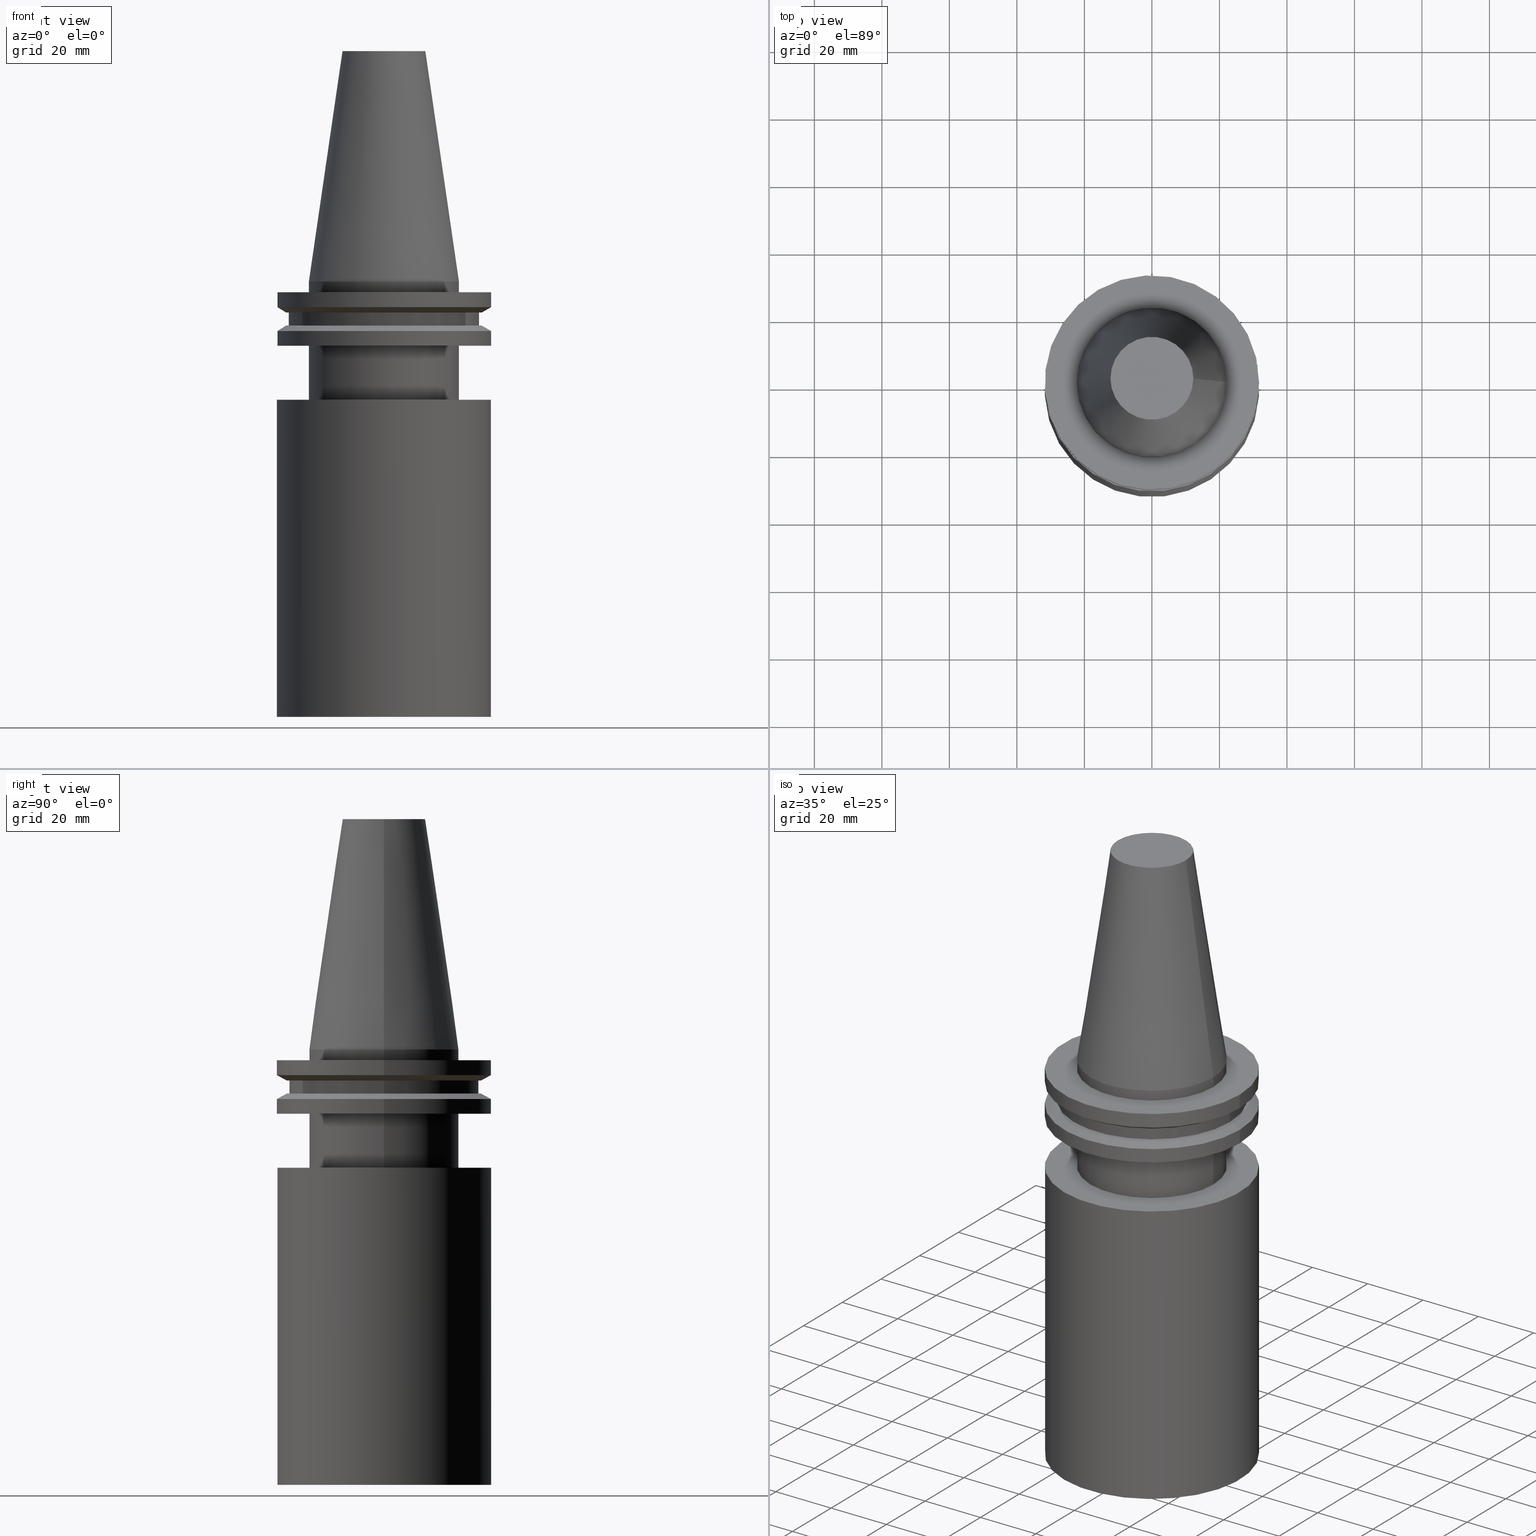
[diagram: canonical four-view strip — front | top / right | iso, engineering-drawing reading convention]
A machine part, canonical four-view strip (front | top / right | iso — engineering-drawing reading convention). The complete STEP part file that produces these views, byte-faithful:
ISO-10303-21;
HEADER;
FILE_DESCRIPTION (( 'STEP AP203' ),
    '1' );
FILE_NAME ('11.368.464.stp',
    '2022-03-09T15:14:03',
    ( '' ),
    ( '' ),
    'SwSTEP 2.0',
    'SolidWorks 2021',
    '' );
FILE_SCHEMA (( 'CONFIG_CONTROL_DESIGN' ));
ENDSEC;

DATA;
#1 = EDGE_CURVE ( 'NONE', #144, #144, #96, .T. ) ;
#2 = EDGE_LOOP ( 'NONE', ( #128 ) ) ;
#3 = LOCAL_TIME ( 9, 14, 3.000000000000000000, #391 ) ;
#4 = CC_DESIGN_DATE_AND_TIME_ASSIGNMENT ( #150, #395, ( #170 ) ) ;
#5 = CARTESIAN_POINT ( 'NONE',  ( 28.17999999999999972, 0.000000000000000000, -13.05499999999999794 ) ) ;
#6 = CYLINDRICAL_SURFACE ( 'NONE', #271, 22.22500000000000142 ) ;
#7 = ORIENTED_EDGE ( 'NONE', *, *, #334, .F. ) ;
#8 = FACE_BOUND ( 'NONE', #277, .T. ) ;
#9 = AXIS2_PLACEMENT_3D ( 'NONE', #383, #196, #69 ) ;
#10 = FACE_OUTER_BOUND ( 'NONE', #111, .T. ) ;
#11 = ORIENTED_EDGE ( 'NONE', *, *, #52, .T. ) ;
#12 = EDGE_LOOP ( 'NONE', ( #122 ) ) ;
#13 = EDGE_LOOP ( 'NONE', ( #120 ) ) ;
#14 = ADVANCED_FACE ( 'NONE', ( #198, #161 ), #224, .F. ) ;
#15 = FACE_BOUND ( 'NONE', #159, .T. ) ;
#16 = CARTESIAN_POINT ( 'NONE',  ( 0.000000000000000000, 0.000000000000000000, 68.25000000000000000 ) ) ;
#17 = CALENDAR_DATE ( 2022, 9, 3 ) ;
#18 = FACE_BOUND ( 'NONE', #251, .T. ) ;
#19 = CIRCLE ( 'NONE', #312, 22.22499999999999787 ) ;
#20 = EDGE_LOOP ( 'NONE', ( #24 ) ) ;
#21 = DATE_AND_TIME ( #205, #392 ) ;
#22 = CARTESIAN_POINT ( 'NONE',  ( 22.22500000000000142, 0.000000000000000000, 0.000000000000000000 ) ) ;
#23 = APPROVAL_ROLE ( '' ) ;
#24 = ORIENTED_EDGE ( 'NONE', *, *, #146, .F. ) ;
#25 = FACE_OUTER_BOUND ( 'NONE', #70, .T. ) ;
#26 = AXIS2_PLACEMENT_3D ( 'NONE', #272, #333, #28 ) ;
#27 = EDGE_CURVE ( 'NONE', #46, #46, #388, .T. ) ;
#28 = DIRECTION ( 'NONE',  ( 1.000000000000000000, 0.000000000000000000, 0.000000000000000000 ) ) ;
#29 = EDGE_LOOP ( 'NONE', ( #347 ) ) ;
#30 = COORDINATED_UNIVERSAL_TIME_OFFSET ( 6, 0, .BEHIND. ) ;
#31 = DIRECTION ( 'NONE',  ( 1.000000000000000000, 0.000000000000000000, 0.000000000000000000 ) ) ;
#32 = CYLINDRICAL_SURFACE ( 'NONE', #209, 31.75000000000000000 ) ;
#33 = CIRCLE ( 'NONE', #238, 28.17999999999999972 ) ;
#34 = DIRECTION ( 'NONE',  ( -1.000000000000000000, 0.000000000000000000, -0.000000000000000000 ) ) ;
#35 = DIRECTION ( 'NONE',  ( -0.000000000000000000, -0.000000000000000000, 1.000000000000000000 ) ) ;
#36 = AXIS2_PLACEMENT_3D ( 'NONE', #256, #346, #348 ) ;
#37 = DIRECTION ( 'NONE',  ( -0.000000000000000000, -0.000000000000000000, 1.000000000000000000 ) ) ;
#38 = DIRECTION ( 'NONE',  ( 0.000000000000000000, 0.000000000000000000, -1.000000000000000000 ) ) ;
#39 = EDGE_CURVE ( 'NONE', #147, #147, #365, .T. ) ;
#40 = CYLINDRICAL_SURFACE ( 'NONE', #218, 28.17999999999999972 ) ;
#41 = APPROVAL_PERSON_ORGANIZATION ( #173, #252, #23 ) ;
#42 = CLOSED_SHELL ( 'NONE', ( #94, #199, #98, #167, #307, #109, #370, #77, #288, #309, #248, #14, #274, #382, #349, #103 ) ) ;
#43 = APPROVAL_STATUS ( 'not_yet_approved' ) ;
#44 = DIRECTION ( 'NONE',  ( -0.000000000000000000, 7.821054598067183607E-17, -1.000000000000000000 ) ) ;
#45 = VERTEX_POINT ( 'NONE', #267 ) ;
#46 = VERTEX_POINT ( 'NONE', #22 ) ;
#47 = MECHANICAL_CONTEXT ( 'NONE', #371, 'mechanical' ) ;
#48 = FACE_OUTER_BOUND ( 'NONE', #143, .T. ) ;
#49 = CARTESIAN_POINT ( 'NONE',  ( 22.22500000000000142, 0.000000000000000000, -19.04999999999999716 ) ) ;
#50 = APPLICATION_CONTEXT ( 'configuration controlled 3d designs of mechanical parts and assemblies' ) ;
#51 = COORDINATED_UNIVERSAL_TIME_OFFSET ( 6, 0, .BEHIND. ) ;
#52 = EDGE_CURVE ( 'NONE', #368, #368, #268, .T. ) ;
#53 = ORIENTED_EDGE ( 'NONE', *, *, #154, .T. ) ;
#54 = CIRCLE ( 'NONE', #61, 31.75000000000000000 ) ;
#55 = AXIS2_PLACEMENT_3D ( 'NONE', #133, #163, #322 ) ;
#56 = FACE_OUTER_BOUND ( 'NONE', #174, .T. ) ;
#57 = VERTEX_POINT ( 'NONE', #182 ) ;
#58 = ORIENTED_EDGE ( 'NONE', *, *, #327, .T. ) ;
#59 = DIRECTION ( 'NONE',  ( -0.000000000000000000, -0.000000000000000000, 1.000000000000000000 ) ) ;
#60 = AXIS2_PLACEMENT_3D ( 'NONE', #297, #294, #80 ) ;
#61 = AXIS2_PLACEMENT_3D ( 'NONE', #306, #216, #119 ) ;
#62 = FACE_OUTER_BOUND ( 'NONE', #172, .T. ) ;
#63 = DIRECTION ( 'NONE',  ( 1.000000000000000000, 0.000000000000000000, 0.000000000000000000 ) ) ;
#64 = CARTESIAN_POINT ( 'NONE',  ( 0.000000000000000000, 0.000000000000000000, 68.25000000000000000 ) ) ;
#65 = DIRECTION ( 'NONE',  ( 0.000000000000000000, 1.000000000000000000, 0.000000000000000000 ) ) ;
#66 = PRODUCT_RELATED_PRODUCT_CATEGORY ( 'detail', '', ( #258 ) ) ;
#67 = FACE_OUTER_BOUND ( 'NONE', #378, .T. ) ;
#68 = EDGE_CURVE ( 'NONE', #91, #91, #393, .T. ) ;
#69 = DIRECTION ( 'NONE',  ( 1.000000000000000000, 0.000000000000000000, 0.000000000000000000 ) ) ;
#70 = EDGE_LOOP ( 'NONE', ( #11 ) ) ;
#71 = ORIENTED_EDGE ( 'NONE', *, *, #177, .T. ) ;
#72 = CIRCLE ( 'NONE', #60, 31.75000000000000000 ) ;
#73 = AXIS2_PLACEMENT_3D ( 'NONE', #376, #202, #319 ) ;
#74 = PRODUCT_DEFINITION_SHAPE ( 'NONE', 'NONE',  #170 ) ;
#75 = CARTESIAN_POINT ( 'NONE',  ( 0.000000000000000000, 0.000000000000000000, -35.04999999999999716 ) ) ;
#76 = APPROVAL_DATE_TIME ( #21, #208 ) ;
#77 = ADVANCED_FACE ( 'NONE', ( #318, #222 ), #40, .T. ) ;
#78 = CARTESIAN_POINT ( 'NONE',  ( 0.000000000000000000, 9.710562085369218008E-32, -35.04999999999999716 ) ) ;
#79 = APPLICATION_PROTOCOL_DEFINITION ( 'international standard', 'config_control_design', 1994, #371 ) ;
#80 = DIRECTION ( 'NONE',  ( 1.000000000000000000, 0.000000000000000000, 0.000000000000000000 ) ) ;
#81 = LOCAL_TIME ( 9, 14, 3.000000000000000000, #169 ) ;
#82 = APPROVAL_DATE_TIME ( #357, #252 ) ;
#83 = APPROVAL ( #43, 'UNSPECIFIED' ) ;
#84 = ORIENTED_EDGE ( 'NONE', *, *, #240, .T. ) ;
#85 = PERSON_AND_ORGANIZATION_ROLE ( 'design_supplier' ) ;
#86 = CARTESIAN_POINT ( 'NONE',  ( 31.75000000000000000, 0.000000000000000000, -14.65472339340266572 ) ) ;
#87 = DIRECTION ( 'NONE',  ( 0.000000000000000000, -0.000000000000000000, 1.000000000000000000 ) ) ;
#88 = AXIS2_PLACEMENT_3D ( 'NONE', #129, #38, #344 ) ;
#89 = EDGE_LOOP ( 'NONE', ( #269 ) ) ;
#90 = DIRECTION ( 'NONE',  ( 1.000000000000000000, 0.000000000000000000, 0.000000000000000000 ) ) ;
#91 = VERTEX_POINT ( 'NONE', #86 ) ;
#92 = EDGE_LOOP ( 'NONE', ( #360 ) ) ;
#93 = VERTEX_POINT ( 'NONE', #214 ) ;
#94 = ADVANCED_FACE ( 'NONE', ( #8, #102 ), #283, .T. ) ;
#95 = FACE_OUTER_BOUND ( 'NONE', #254, .T. ) ;
#96 = CIRCLE ( 'NONE', #55, 31.74999999999999289 ) ;
#97 = CARTESIAN_POINT ( 'NONE',  ( 0.000000000000000000, 0.000000000000000000, 68.25000000000000000 ) ) ;
#98 = ADVANCED_FACE ( 'NONE', ( #67, #375 ), #220, .T. ) ;
#99 = PLANE ( 'NONE',  #292 ) ;
#100 = CARTESIAN_POINT ( 'NONE',  ( 0.000000000000000000, 0.000000000000000000, -19.04999999999999716 ) ) ;
#101 = DATE_AND_TIME ( #200, #104 ) ;
#102 = FACE_OUTER_BOUND ( 'NONE', #136, .T. ) ;
#103 = ADVANCED_FACE ( 'NONE', ( #278 ), #131, .T. ) ;
#104 = LOCAL_TIME ( 9, 14, 3.000000000000000000, #30 ) ;
#105 = FACE_OUTER_BOUND ( 'NONE', #113, .T. ) ;
#106 = DIRECTION ( 'NONE',  ( 1.000000000000000000, 0.000000000000000000, 0.000000000000000000 ) ) ;
#107 = DIRECTION ( 'NONE',  ( -0.000000000000000000, -0.000000000000000000, 1.000000000000000000 ) ) ;
#108 = CARTESIAN_POINT ( 'NONE',  ( 0.000000000000000000, 0.000000000000000000, -14.65472339340266572 ) ) ;
#109 = ADVANCED_FACE ( 'NONE', ( #18, #168 ), #229, .T. ) ;
#110 = FACE_BOUND ( 'NONE', #20, .T. ) ;
#111 = EDGE_LOOP ( 'NONE', ( #366 ) ) ;
#112 = APPLICATION_PROTOCOL_DEFINITION ( 'international standard', 'config_control_design', 1994, #50 ) ;
#113 = EDGE_LOOP ( 'NONE', ( #262 ) ) ;
#114 = CC_DESIGN_PERSON_AND_ORGANIZATION_ASSIGNMENT ( #359, #85, ( #171 ) ) ;
#115 = CALENDAR_DATE ( 2022, 9, 3 ) ;
#116 = CARTESIAN_POINT ( 'NONE',  ( 12.27178102086201150, 0.000000000000000000, 68.25000000000000000 ) ) ;
#117 = PERSON_AND_ORGANIZATION ( #273, #324 ) ;
#118 = ORIENTED_EDGE ( 'NONE', *, *, #1, .T. ) ;
#119 = DIRECTION ( 'NONE',  ( 1.000000000000000000, 0.000000000000000000, 0.000000000000000000 ) ) ;
#120 = ORIENTED_EDGE ( 'NONE', *, *, #68, .T. ) ;
#121 = AXIS2_PLACEMENT_3D ( 'NONE', #153, #87, #210 ) ;
#122 = ORIENTED_EDGE ( 'NONE', *, *, #27, .F. ) ;
#123 = CARTESIAN_POINT ( 'NONE',  ( 0.000000000000000000, 0.000000000000000000, 68.25000000000000000 ) ) ;
#124 = EDGE_CURVE ( 'NONE', #331, #331, #192, .T. ) ;
#125 = CARTESIAN_POINT ( 'NONE',  ( 0.000000000000000000, 0.000000000000000000, -35.04999999999999716 ) ) ;
#126 = CIRCLE ( 'NONE', #379, 22.22500000000000142 ) ;
#127 = AXIS2_PLACEMENT_3D ( 'NONE', #75, #44, #140 ) ;
#128 = ORIENTED_EDGE ( 'NONE', *, *, #362, .T. ) ;
#129 = CARTESIAN_POINT ( 'NONE',  ( 0.000000000000000000, 0.000000000000000000, 0.000000000000000000 ) ) ;
#130 = CYLINDRICAL_SURFACE ( 'NONE', #185, 31.75000000000000000 ) ;
#131 = PLANE ( 'NONE',  #332 ) ;
#132 = ORIENTED_EDGE ( 'NONE', *, *, #52, .F. ) ;
#133 = CARTESIAN_POINT ( 'NONE',  ( 0.000000000000000000, 7.347880794884119933E-15, -129.0000000000000000 ) ) ;
#134 = SHAPE_DEFINITION_REPRESENTATION ( #74, #298 ) ;
#135 = EDGE_LOOP ( 'NONE', ( #84 ) ) ;
#136 = EDGE_LOOP ( 'NONE', ( #369 ) ) ;
#137 = DIRECTION ( 'NONE',  ( -0.000000000000000000, -0.000000000000000000, 1.000000000000000000 ) ) ;
#138 = ORIENTED_EDGE ( 'NONE', *, *, #177, .F. ) ;
#139 = APPROVAL_DATE_TIME ( #166, #83 ) ;
#140 = DIRECTION ( 'NONE',  ( 0.000000000000000000, 1.000000000000000000, 0.000000000000000000 ) ) ;
#141 = AXIS2_PLACEMENT_3D ( 'NONE', #233, #354, #175 ) ;
#142 = EDGE_CURVE ( 'NONE', #57, #57, #301, .T. ) ;
#143 = EDGE_LOOP ( 'NONE', ( #244 ) ) ;
#144 = VERTEX_POINT ( 'NONE', #351 ) ;
#145 = PERSON_AND_ORGANIZATION ( #273, #324 ) ;
#146 = EDGE_CURVE ( 'NONE', #305, #305, #217, .T. ) ;
#147 = VERTEX_POINT ( 'NONE', #361 ) ;
#148 = VERTEX_POINT ( 'NONE', #49 ) ;
#149 = VERTEX_POINT ( 'NONE', #266 ) ;
#150 = DATE_AND_TIME ( #237, #345 ) ;
#151 = CONICAL_SURFACE ( 'NONE', #206, 28.97919780457007732, 1.047197551196598297 ) ;
#152 = AXIS2_PLACEMENT_3D ( 'NONE', #64, #35, #162 ) ;
#153 = CARTESIAN_POINT ( 'NONE',  ( 0.000000000000000000, 28.97919780457007732, -9.204999999999996518 ) ) ;
#154 = EDGE_CURVE ( 'NONE', #93, #93, #339, .T. ) ;
#155 = DIRECTION ( 'NONE',  ( -0.000000000000000000, -0.000000000000000000, 1.000000000000000000 ) ) ;
#156 = AXIS2_PLACEMENT_3D ( 'NONE', #385, #179, #31 ) ;
#157 = CARTESIAN_POINT ( 'NONE',  ( 0.000000000000000000, 0.000000000000000000, 68.25000000000000000 ) ) ;
#158 = FACE_BOUND ( 'NONE', #29, .T. ) ;
#159 = EDGE_LOOP ( 'NONE', ( #337 ) ) ;
#160 = DIRECTION ( 'NONE',  ( -0.000000000000000000, -0.000000000000000000, 1.000000000000000000 ) ) ;
#161 = FACE_OUTER_BOUND ( 'NONE', #335, .T. ) ;
#162 = DIRECTION ( 'NONE',  ( 1.000000000000000000, 0.000000000000000000, 0.000000000000000000 ) ) ;
#163 = DIRECTION ( 'NONE',  ( -0.000000000000000000, 7.821054598067183607E-17, -1.000000000000000000 ) ) ;
#164 = EDGE_LOOP ( 'NONE', ( #165 ) ) ;
#165 = ORIENTED_EDGE ( 'NONE', *, *, #124, .T. ) ;
#166 = DATE_AND_TIME ( #17, #81 ) ;
#167 = ADVANCED_FACE ( 'NONE', ( #336, #158 ), #243, .F. ) ;
#168 = FACE_OUTER_BOUND ( 'NONE', #13, .T. ) ;
#169 = COORDINATED_UNIVERSAL_TIME_OFFSET ( 6, 0, .BEHIND. ) ;
#170 = PRODUCT_DEFINITION ( 'UNKNOWN', '', #171, #257 ) ;
#171 = PRODUCT_DEFINITION_FORMATION_WITH_SPECIFIED_SOURCE ( 'ANY', '', #258, .NOT_KNOWN. ) ;
#172 = EDGE_LOOP ( 'NONE', ( #310 ) ) ;
#173 = PERSON_AND_ORGANIZATION ( #273, #324 ) ;
#174 = EDGE_LOOP ( 'NONE', ( #358 ) ) ;
#175 = DIRECTION ( 'NONE',  ( 1.000000000000000000, 0.000000000000000000, 0.000000000000000000 ) ) ;
#176 = CC_DESIGN_APPROVAL ( #252, ( #171 ) ) ;
#177 = EDGE_CURVE ( 'NONE', #338, #338, #19, .T. ) ;
#178 = PERSON_AND_ORGANIZATION ( #273, #324 ) ;
#179 = DIRECTION ( 'NONE',  ( -0.000000000000000000, -0.000000000000000000, 1.000000000000000000 ) ) ;
#180 = EDGE_LOOP ( 'NONE', ( #138 ) ) ;
#181 = PLANE ( 'NONE',  #121 ) ;
#182 = CARTESIAN_POINT ( 'NONE',  ( 0.000000000000000000, 31.75000000000000000, -35.04999999999999716 ) ) ;
#183 = CC_DESIGN_PERSON_AND_ORGANIZATION_ASSIGNMENT ( #117, #239, ( #171 ) ) ;
#184 = DIRECTION ( 'NONE',  ( 1.000000000000000000, 0.000000000000000000, 0.000000000000000000 ) ) ;
#185 = AXIS2_PLACEMENT_3D ( 'NONE', #249, #343, #65 ) ;
#186 = CARTESIAN_POINT ( 'NONE',  ( 28.97919780457008088, 0.000000000000000000, -13.05499999999999794 ) ) ;
#187 = FACE_OUTER_BOUND ( 'NONE', #281, .T. ) ;
#188 = FACE_BOUND ( 'NONE', #2, .T. ) ;
#189 = DIRECTION ( 'NONE',  ( 1.000000000000000000, 0.000000000000000000, 0.000000000000000000 ) ) ;
#190 = EDGE_LOOP ( 'NONE', ( #118 ) ) ;
#191 = AXIS2_PLACEMENT_3D ( 'NONE', #255, #289, #232 ) ;
#192 = CIRCLE ( 'NONE', #201, 31.74999999999999289 ) ;
#193 = CARTESIAN_POINT ( 'NONE',  ( 0.000000000000000000, 0.000000000000000000, -9.205000000000005400 ) ) ;
#194 = CARTESIAN_POINT ( 'NONE',  ( 0.000000000000000000, 31.75000000000000000, -129.0000000000000000 ) ) ;
#195 = PERSON_AND_ORGANIZATION ( #273, #324 ) ;
#196 = DIRECTION ( 'NONE',  ( -0.000000000000000000, -0.000000000000000000, 1.000000000000000000 ) ) ;
#197 = UNCERTAINTY_MEASURE_WITH_UNIT (LENGTH_MEASURE( 1.000000000000000082E-05 ), #264, 'distance_accuracy_value', 'NONE');
#198 = FACE_BOUND ( 'NONE', #89, .T. ) ;
#199 = ADVANCED_FACE ( 'NONE', ( #95 ), #99, .F. ) ;
#200 = CALENDAR_DATE ( 2022, 9, 3 ) ;
#201 = AXIS2_PLACEMENT_3D ( 'NONE', #231, #259, #352 ) ;
#202 = DIRECTION ( 'NONE',  ( -0.000000000000000000, -0.000000000000000000, 1.000000000000000000 ) ) ;
#203 = DIRECTION ( 'NONE',  ( 0.000000000000000000, 0.000000000000000000, -1.000000000000000000 ) ) ;
#204 = CARTESIAN_POINT ( 'NONE',  ( 0.000000000000000000, 0.000000000000000000, -9.204999999999991189 ) ) ;
#205 = CALENDAR_DATE ( 2022, 9, 3 ) ;
#206 = AXIS2_PLACEMENT_3D ( 'NONE', #193, #137, #372 ) ;
#207 = SECURITY_CLASSIFICATION_LEVEL ( 'unclassified' ) ;
#208 = APPROVAL ( #329, 'UNSPECIFIED' ) ;
#209 = AXIS2_PLACEMENT_3D ( 'NONE', #377, #160, #275 ) ;
#210 = DIRECTION ( 'NONE',  ( 1.000000000000000000, 0.000000000000000000, 0.000000000000000000 ) ) ;
#211 = FACE_OUTER_BOUND ( 'NONE', #12, .T. ) ;
#212 = CARTESIAN_POINT ( 'NONE',  ( 31.74999999999999289, 0.000000000000000000, -19.04999999999999716 ) ) ;
#213 = DIRECTION ( 'NONE',  ( 1.000000000000000000, 0.000000000000000000, 0.000000000000000000 ) ) ;
#214 = CARTESIAN_POINT ( 'NONE',  ( 22.22500000000000142, 0.000000000000000000, -3.174999999999997158 ) ) ;
#215 = ORIENTED_EDGE ( 'NONE', *, *, #240, .F. ) ;
#216 = DIRECTION ( 'NONE',  ( -0.000000000000000000, -0.000000000000000000, 1.000000000000000000 ) ) ;
#217 = CIRCLE ( 'NONE', #156, 28.17999999999999972 ) ;
#218 = AXIS2_PLACEMENT_3D ( 'NONE', #16, #107, #276 ) ;
#219 = DIRECTION ( 'NONE',  ( -0.000000000000000000, -0.000000000000000000, 1.000000000000000000 ) ) ;
#220 = CYLINDRICAL_SURFACE ( 'NONE', #152, 22.22500000000000142 ) ;
#221 = DIRECTION ( 'NONE',  ( -0.000000000000000000, -0.000000000000000000, 1.000000000000000000 ) ) ;
#222 = FACE_OUTER_BOUND ( 'NONE', #374, .T. ) ;
#223 = SECURITY_CLASSIFICATION ( '', '', #207 ) ;
#224 = PLANE ( 'NONE',  #321 ) ;
#225 = CC_DESIGN_DATE_AND_TIME_ASSIGNMENT ( #101, #380, ( #223 ) ) ;
#226 = ORIENTED_EDGE ( 'NONE', *, *, #355, .F. ) ;
#227 = DIRECTION ( 'NONE',  ( 0.000000000000000000, -7.821054598067183607E-17, 1.000000000000000000 ) ) ;
#228 = DIRECTION ( 'NONE',  ( -1.000000000000000000, 0.000000000000000000, -0.000000000000000000 ) ) ;
#229 = CONICAL_SURFACE ( 'NONE', #245, 31.75000000000000000, 1.047197551196597853 ) ;
#230 = PLANE ( 'NONE',  #265 ) ;
#231 = CARTESIAN_POINT ( 'NONE',  ( 0.000000000000000000, 0.000000000000000000, -19.04999999999999716 ) ) ;
#232 = DIRECTION ( 'NONE',  ( -1.000000000000000000, 0.000000000000000000, -0.000000000000000000 ) ) ;
#233 = CARTESIAN_POINT ( 'NONE',  ( 0.000000000000000000, 0.000000000000000000, 0.000000000000000000 ) ) ;
#234 = ORIENTED_EDGE ( 'NONE', *, *, #355, .T. ) ;
#235 = COORDINATED_UNIVERSAL_TIME_OFFSET ( 6, 0, .BEHIND. ) ;
#236 = AXIS2_PLACEMENT_3D ( 'NONE', #97, #221, #317 ) ;
#237 = CALENDAR_DATE ( 2022, 9, 3 ) ;
#238 = AXIS2_PLACEMENT_3D ( 'NONE', #204, #328, #286 ) ;
#239 = PERSON_AND_ORGANIZATION_ROLE ( 'creator' ) ;
#240 = EDGE_CURVE ( 'NONE', #149, #149, #54, .T. ) ;
#241 = CARTESIAN_POINT ( 'NONE',  ( 0.000000000000000000, 12.27178102086201150, 68.25000000000000000 ) ) ;
#242 =( GEOMETRIC_REPRESENTATION_CONTEXT ( 3 ) GLOBAL_UNCERTAINTY_ASSIGNED_CONTEXT ( ( #197 ) ) GLOBAL_UNIT_ASSIGNED_CONTEXT ( ( #264, #261, #386 ) ) REPRESENTATION_CONTEXT ( 'NONE', 'WORKASPACE' ) );
#243 = PLANE ( 'NONE',  #26 ) ;
#244 = ORIENTED_EDGE ( 'NONE', *, *, #142, .F. ) ;
#245 = AXIS2_PLACEMENT_3D ( 'NONE', #108, #203, #287 ) ;
#246 = ORIENTED_EDGE ( 'NONE', *, *, #327, .F. ) ;
#247 = CARTESIAN_POINT ( 'NONE',  ( 0.000000000000000000, 31.75000000000000000, -3.174999999999999378 ) ) ;
#248 = ADVANCED_FACE ( 'NONE', ( #187, #340 ), #367, .T. ) ;
#249 = CARTESIAN_POINT ( 'NONE',  ( 0.000000000000000000, 7.347880794884119933E-15, -129.0000000000000000 ) ) ;
#250 = DIRECTION ( 'NONE',  ( 0.000000000000000000, 0.000000000000000000, -1.000000000000000000 ) ) ;
#251 = EDGE_LOOP ( 'NONE', ( #132 ) ) ;
#252 = APPROVAL ( #295, 'UNSPECIFIED' ) ;
#253 = APPROVAL_PERSON_ORGANIZATION ( #263, #208, #293 ) ;
#254 = EDGE_LOOP ( 'NONE', ( #58 ) ) ;
#255 = CARTESIAN_POINT ( 'NONE',  ( 0.000000000000000000, 28.17999999999999972, -13.05499999999999794 ) ) ;
#256 = CARTESIAN_POINT ( 'NONE',  ( 0.000000000000000000, 0.000000000000000000, -9.205000000000005400 ) ) ;
#257 = DESIGN_CONTEXT ( 'detailed design', #50, 'design' ) ;
#258 = PRODUCT ( '11.368.464', '11.368.464', '', ( #47 ) ) ;
#259 = DIRECTION ( 'NONE',  ( -0.000000000000000000, -0.000000000000000000, 1.000000000000000000 ) ) ;
#260 = AXIS2_PLACEMENT_3D ( 'NONE', #311, #285, #106 ) ;
#261 =( NAMED_UNIT ( * ) PLANE_ANGLE_UNIT ( ) SI_UNIT ( $, .RADIAN. ) );
#262 = ORIENTED_EDGE ( 'NONE', *, *, #142, .T. ) ;
#263 = PERSON_AND_ORGANIZATION ( #273, #324 ) ;
#264 =( LENGTH_UNIT ( ) NAMED_UNIT ( * ) SI_UNIT ( .MILLI., .METRE. ) );
#265 = AXIS2_PLACEMENT_3D ( 'NONE', #78, #227, #323 ) ;
#266 = CARTESIAN_POINT ( 'NONE',  ( 31.75000000000000000, 0.000000000000000000, -7.605276606597335842 ) ) ;
#267 = CARTESIAN_POINT ( 'NONE',  ( 28.17999999999999972, 0.000000000000000000, -9.204999999999991189 ) ) ;
#268 = CIRCLE ( 'NONE', #260, 28.97919780457008088 ) ;
#269 = ORIENTED_EDGE ( 'NONE', *, *, #154, .F. ) ;
#270 = DIRECTION ( 'NONE',  ( 0.000000000000000000, 0.000000000000000000, -1.000000000000000000 ) ) ;
#271 = AXIS2_PLACEMENT_3D ( 'NONE', #123, #363, #63 ) ;
#272 = CARTESIAN_POINT ( 'NONE',  ( 0.000000000000000000, 31.74999999999999289, -19.04999999999999716 ) ) ;
#273 = PERSON ( 'UNSPECIFIED', 'UNSPECIFIED', 'UNSPECIFIED', ('UNSPECIFIED'), ('UNSPECIFIED'), ('UNSPECIFIED') ) ;
#274 = ADVANCED_FACE ( 'NONE', ( #211, #341 ), #6, .T. ) ;
#275 = DIRECTION ( 'NONE',  ( 1.000000000000000000, 0.000000000000000000, 0.000000000000000000 ) ) ;
#276 = DIRECTION ( 'NONE',  ( 1.000000000000000000, 0.000000000000000000, 0.000000000000000000 ) ) ;
#277 = EDGE_LOOP ( 'NONE', ( #246 ) ) ;
#278 = FACE_OUTER_BOUND ( 'NONE', #190, .T. ) ;
#279 = DIRECTION ( 'NONE',  ( -0.000000000000000000, 7.821054598067183607E-17, -1.000000000000000000 ) ) ;
#280 = CC_DESIGN_PERSON_AND_ORGANIZATION_ASSIGNMENT ( #145, #390, ( #170 ) ) ;
#281 = EDGE_LOOP ( 'NONE', ( #226 ) ) ;
#282 = APPROVAL_PERSON_ORGANIZATION ( #195, #83, #316 ) ;
#283 = CONICAL_SURFACE ( 'NONE', #88, 22.22500000000000142, 0.1448138465474119174 ) ;
#284 = FACE_OUTER_BOUND ( 'NONE', #389, .T. ) ;
#285 = DIRECTION ( 'NONE',  ( -0.000000000000000000, -0.000000000000000000, 1.000000000000000000 ) ) ;
#286 = DIRECTION ( 'NONE',  ( 1.000000000000000000, 0.000000000000000000, 0.000000000000000000 ) ) ;
#287 = DIRECTION ( 'NONE',  ( -1.000000000000000000, 0.000000000000000000, 0.000000000000000000 ) ) ;
#288 = ADVANCED_FACE ( 'NONE', ( #56, #188 ), #181, .F. ) ;
#289 = DIRECTION ( 'NONE',  ( 0.000000000000000000, 0.000000000000000000, -1.000000000000000000 ) ) ;
#290 = VERTEX_POINT ( 'NONE', #326 ) ;
#291 = ORIENTED_EDGE ( 'NONE', *, *, #146, .T. ) ;
#292 = AXIS2_PLACEMENT_3D ( 'NONE', #241, #270, #34 ) ;
#293 = APPROVAL_ROLE ( '' ) ;
#294 = DIRECTION ( 'NONE',  ( -0.000000000000000000, -0.000000000000000000, 1.000000000000000000 ) ) ;
#295 = APPROVAL_STATUS ( 'not_yet_approved' ) ;
#296 = CC_DESIGN_PERSON_AND_ORGANIZATION_ASSIGNMENT ( #178, #303, ( #223 ) ) ;
#297 = CARTESIAN_POINT ( 'NONE',  ( 0.000000000000000000, 0.000000000000000000, -3.174999999999997158 ) ) ;
#298 = ADVANCED_BREP_SHAPE_REPRESENTATION ( '11.368.464', ( #330, #141 ), #242 ) ;
#299 = PERSON_AND_ORGANIZATION_ROLE ( 'design_owner' ) ;
#300 = CC_DESIGN_APPROVAL ( #83, ( #223 ) ) ;
#301 = CIRCLE ( 'NONE', #127, 31.75000000000000000 ) ;
#302 = ORIENTED_EDGE ( 'NONE', *, *, #362, .F. ) ;
#303 = PERSON_AND_ORGANIZATION_ROLE ( 'classification_officer' ) ;
#304 = FACE_OUTER_BOUND ( 'NONE', #164, .T. ) ;
#305 = VERTEX_POINT ( 'NONE', #5 ) ;
#306 = CARTESIAN_POINT ( 'NONE',  ( 0.000000000000000000, 0.000000000000000000, -7.605276606597335842 ) ) ;
#307 = ADVANCED_FACE ( 'NONE', ( #62, #304 ), #32, .T. ) ;
#308 = CARTESIAN_POINT ( 'NONE',  ( 22.22499999999999787, 0.000000000000000000, -35.04999999999999716 ) ) ;
#309 = ADVANCED_FACE ( 'NONE', ( #284, #15 ), #151, .T. ) ;
#310 = ORIENTED_EDGE ( 'NONE', *, *, #68, .F. ) ;
#311 = CARTESIAN_POINT ( 'NONE',  ( 0.000000000000000000, 0.000000000000000000, -13.05499999999999794 ) ) ;
#312 = AXIS2_PLACEMENT_3D ( 'NONE', #125, #155, #184 ) ;
#313 = EDGE_LOOP ( 'NONE', ( #53 ) ) ;
#314 = CC_DESIGN_PERSON_AND_ORGANIZATION_ASSIGNMENT ( #353, #299, ( #258 ) ) ;
#315 = DIRECTION ( 'NONE',  ( 0.000000000000000000, 1.000000000000000000, 7.821054598067183607E-17 ) ) ;
#316 = APPROVAL_ROLE ( '' ) ;
#317 = DIRECTION ( 'NONE',  ( 1.000000000000000000, 0.000000000000000000, 0.000000000000000000 ) ) ;
#318 = FACE_OUTER_BOUND ( 'NONE', #381, .T. ) ;
#319 = DIRECTION ( 'NONE',  ( 1.000000000000000000, 0.000000000000000000, 0.000000000000000000 ) ) ;
#320 = CC_DESIGN_SECURITY_CLASSIFICATION ( #223, ( #171 ) ) ;
#321 = AXIS2_PLACEMENT_3D ( 'NONE', #247, #250, #228 ) ;
#322 = DIRECTION ( 'NONE',  ( 0.000000000000000000, 1.000000000000000000, 0.000000000000000000 ) ) ;
#323 = DIRECTION ( 'NONE',  ( 0.000000000000000000, -1.000000000000000000, -7.821054598067183607E-17 ) ) ;
#324 = ORGANIZATION ( 'UNSPECIFIED', 'UNSPECIFIED', '' ) ;
#325 = FACE_BOUND ( 'NONE', #180, .T. ) ;
#326 = CARTESIAN_POINT ( 'NONE',  ( 31.75000000000000000, 0.000000000000000000, -3.174999999999997158 ) ) ;
#327 = EDGE_CURVE ( 'NONE', #394, #394, #387, .T. ) ;
#328 = DIRECTION ( 'NONE',  ( -0.000000000000000000, -0.000000000000000000, 1.000000000000000000 ) ) ;
#329 = APPROVAL_STATUS ( 'not_yet_approved' ) ;
#330 = MANIFOLD_SOLID_BREP ( 'CKB', #42 ) ;
#331 = VERTEX_POINT ( 'NONE', #212 ) ;
#332 = AXIS2_PLACEMENT_3D ( 'NONE', #194, #279, #315 ) ;
#333 = DIRECTION ( 'NONE',  ( 0.000000000000000000, -0.000000000000000000, 1.000000000000000000 ) ) ;
#334 = EDGE_CURVE ( 'NONE', #148, #148, #126, .T. ) ;
#335 = EDGE_LOOP ( 'NONE', ( #234 ) ) ;
#336 = FACE_OUTER_BOUND ( 'NONE', #92, .T. ) ;
#337 = ORIENTED_EDGE ( 'NONE', *, *, #39, .T. ) ;
#338 = VERTEX_POINT ( 'NONE', #308 ) ;
#339 = CIRCLE ( 'NONE', #364, 22.22500000000000142 ) ;
#340 = FACE_OUTER_BOUND ( 'NONE', #135, .T. ) ;
#341 = FACE_OUTER_BOUND ( 'NONE', #313, .T. ) ;
#342 = EDGE_LOOP ( 'NONE', ( #71 ) ) ;
#343 = DIRECTION ( 'NONE',  ( -0.000000000000000000, 7.821054598067183607E-17, -1.000000000000000000 ) ) ;
#344 = DIRECTION ( 'NONE',  ( -1.000000000000000000, 0.000000000000000000, 0.000000000000000000 ) ) ;
#345 = LOCAL_TIME ( 9, 14, 3.000000000000000000, #235 ) ;
#346 = DIRECTION ( 'NONE',  ( -0.000000000000000000, -0.000000000000000000, 1.000000000000000000 ) ) ;
#347 = ORIENTED_EDGE ( 'NONE', *, *, #334, .T. ) ;
#348 = DIRECTION ( 'NONE',  ( 1.000000000000000000, 0.000000000000000000, 0.000000000000000000 ) ) ;
#349 = ADVANCED_FACE ( 'NONE', ( #105, #10 ), #130, .T. ) ;
#350 = CC_DESIGN_APPROVAL ( #208, ( #170 ) ) ;
#351 = CARTESIAN_POINT ( 'NONE',  ( 0.000000000000000000, 31.75000000000000000, -129.0000000000000000 ) ) ;
#352 = DIRECTION ( 'NONE',  ( 1.000000000000000000, 0.000000000000000000, 0.000000000000000000 ) ) ;
#353 = PERSON_AND_ORGANIZATION ( #273, #324 ) ;
#354 = DIRECTION ( 'NONE',  ( 0.000000000000000000, 0.000000000000000000, 1.000000000000000000 ) ) ;
#355 = EDGE_CURVE ( 'NONE', #290, #290, #72, .T. ) ;
#356 = AXIS2_PLACEMENT_3D ( 'NONE', #157, #219, #90 ) ;
#357 = DATE_AND_TIME ( #115, #3 ) ;
#358 = ORIENTED_EDGE ( 'NONE', *, *, #39, .F. ) ;
#359 = PERSON_AND_ORGANIZATION ( #273, #324 ) ;
#360 = ORIENTED_EDGE ( 'NONE', *, *, #124, .F. ) ;
#361 = CARTESIAN_POINT ( 'NONE',  ( 28.97919780457007732, 0.000000000000000000, -9.205000000000005400 ) ) ;
#362 = EDGE_CURVE ( 'NONE', #45, #45, #33, .T. ) ;
#363 = DIRECTION ( 'NONE',  ( -0.000000000000000000, -0.000000000000000000, 1.000000000000000000 ) ) ;
#364 = AXIS2_PLACEMENT_3D ( 'NONE', #373, #59, #213 ) ;
#365 = CIRCLE ( 'NONE', #36, 28.97919780457007732 ) ;
#366 = ORIENTED_EDGE ( 'NONE', *, *, #1, .F. ) ;
#367 = CYLINDRICAL_SURFACE ( 'NONE', #356, 31.75000000000000000 ) ;
#368 = VERTEX_POINT ( 'NONE', #186 ) ;
#369 = ORIENTED_EDGE ( 'NONE', *, *, #27, .T. ) ;
#370 = ADVANCED_FACE ( 'NONE', ( #110, #25 ), #384, .F. ) ;
#371 = APPLICATION_CONTEXT ( 'configuration controlled 3d designs of mechanical parts and assemblies' ) ;
#372 = DIRECTION ( 'NONE',  ( 1.000000000000000000, 0.000000000000000000, 0.000000000000000000 ) ) ;
#373 = CARTESIAN_POINT ( 'NONE',  ( 0.000000000000000000, 0.000000000000000000, -3.174999999999997158 ) ) ;
#374 = EDGE_LOOP ( 'NONE', ( #291 ) ) ;
#375 = FACE_OUTER_BOUND ( 'NONE', #342, .T. ) ;
#376 = CARTESIAN_POINT ( 'NONE',  ( 0.000000000000000000, 0.000000000000000000, 0.000000000000000000 ) ) ;
#377 = CARTESIAN_POINT ( 'NONE',  ( 0.000000000000000000, 0.000000000000000000, 68.25000000000000000 ) ) ;
#378 = EDGE_LOOP ( 'NONE', ( #7 ) ) ;
#379 = AXIS2_PLACEMENT_3D ( 'NONE', #100, #37, #189 ) ;
#380 = DATE_TIME_ROLE ( 'classification_date' ) ;
#381 = EDGE_LOOP ( 'NONE', ( #302 ) ) ;
#382 = ADVANCED_FACE ( 'NONE', ( #325, #48 ), #230, .T. ) ;
#383 = CARTESIAN_POINT ( 'NONE',  ( 0.000000000000000000, 0.000000000000000000, -14.65472339340266572 ) ) ;
#384 = PLANE ( 'NONE',  #191 ) ;
#385 = CARTESIAN_POINT ( 'NONE',  ( 0.000000000000000000, 0.000000000000000000, -13.05499999999999794 ) ) ;
#386 =( NAMED_UNIT ( * ) SI_UNIT ( $, .STERADIAN. ) SOLID_ANGLE_UNIT ( ) );
#387 = CIRCLE ( 'NONE', #236, 12.27178102086201150 ) ;
#388 = CIRCLE ( 'NONE', #73, 22.22500000000000142 ) ;
#389 = EDGE_LOOP ( 'NONE', ( #215 ) ) ;
#390 = PERSON_AND_ORGANIZATION_ROLE ( 'creator' ) ;
#391 = COORDINATED_UNIVERSAL_TIME_OFFSET ( 6, 0, .BEHIND. ) ;
#392 = LOCAL_TIME ( 9, 14, 3.000000000000000000, #51 ) ;
#393 = CIRCLE ( 'NONE', #9, 31.75000000000000000 ) ;
#394 = VERTEX_POINT ( 'NONE', #116 ) ;
#395 = DATE_TIME_ROLE ( 'creation_date' ) ;
ENDSEC;
END-ISO-10303-21;
